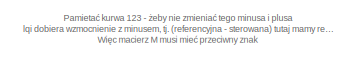
[diagram: root canvas - part 1/4, top left region]
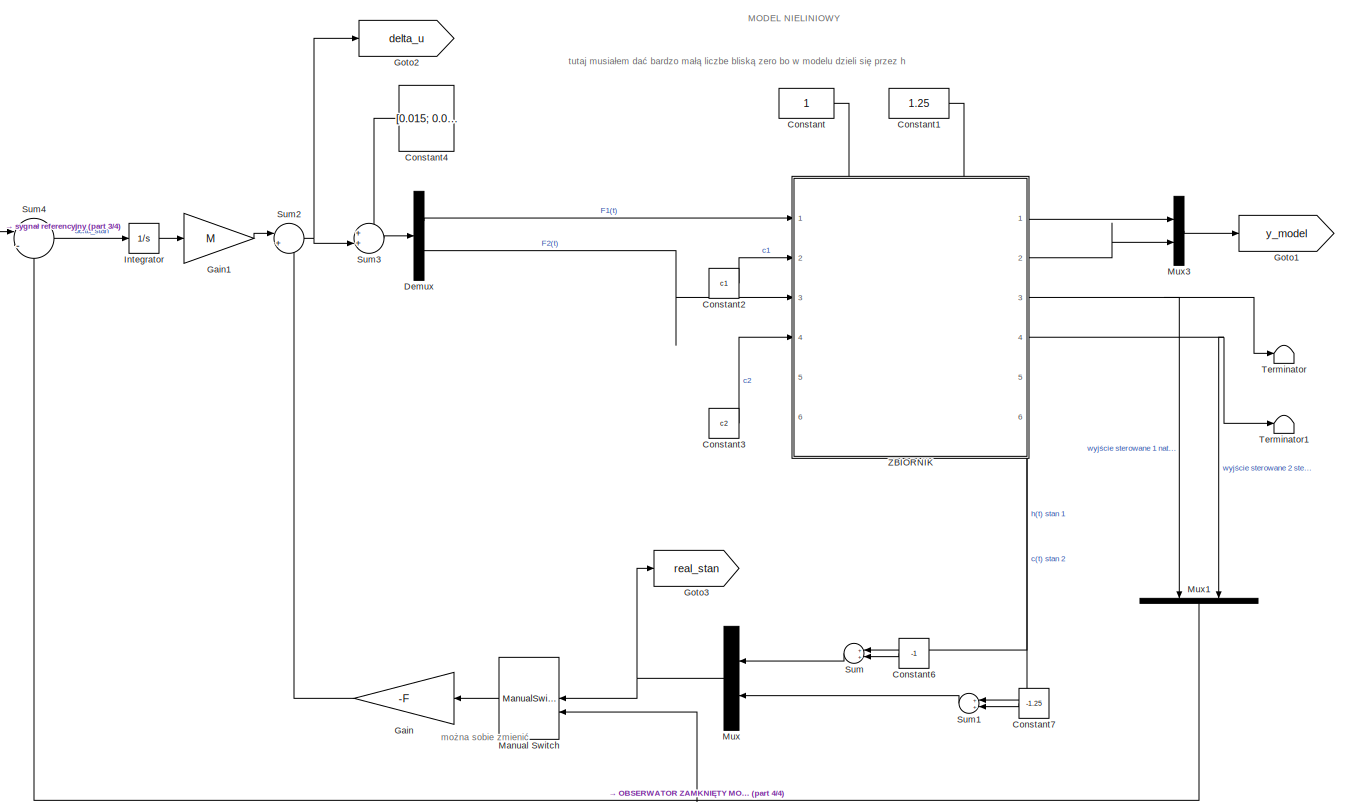
[diagram: root canvas - part 2/4, central region]
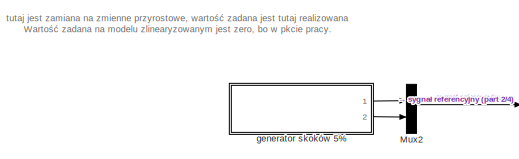
[diagram: root canvas - part 3/4, top left region]
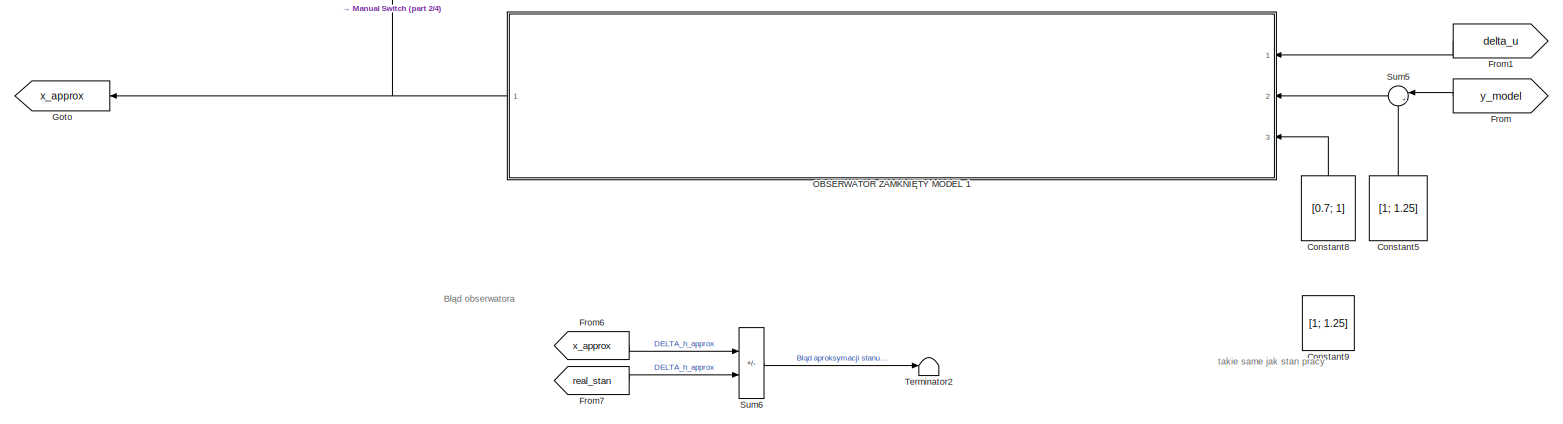
[diagram: root canvas - part 4/4, bottom right region]
MODEL slx_ad8a8d4b6759
KIND model
CONFIG AbsTol = auto
CONFIG EnableMultiTasking = off
CONFIG FixedStep = auto
CONFIG MaxStep = auto
CONFIG MinStep = auto
CONFIG RelTol = 1e-3
CONFIG SampleTimeConstraint = Unconstrained
CONFIG SolverName = VariableStepAuto
CONFIG StartTime = 0.0
CONFIG StopTime = 210
BLOCK [Constant] Constant
BLOCK [Constant] Constant1
  Value = 1.25
BLOCK [Constant] Constant2
  Value = c1
BLOCK [Constant] Constant3
  Value = c2
BLOCK [Constant] Constant4
  NameLocation = top
  Value = [0.015; 0.005]
  VectorParams1D = off
BLOCK [Constant] Constant5
  NameLocation = right
  Value = [1; 1.25]
  VectorParams1D = off
BLOCK [Constant] Constant6
  NameLocation = top
  Value = -1
BLOCK [Constant] Constant7
  NameLocation = top
  Value = -1.25
BLOCK [Constant] Constant8
  NameLocation = right
  Value = [0.7; 1]
  VectorParams1D = off
BLOCK [Constant] Constant9
  Commented = on
  NameLocation = right
  Value = [1; 1.25]
  VectorParams1D = off
BLOCK [Demux] Demux
  Outputs = 2
  Ports = [1, 2]
BLOCK [From] From
  GotoTag = y_model
  NameLocation = top
BLOCK [From] From1
  GotoTag = delta_u
  NameLocation = top
BLOCK [From] From6
  GotoTag = x_approx
BLOCK [From] From7
  GotoTag = real_stan
BLOCK [Gain] Gain
  Gain = -F
  Multiplication = Matrix(K*u) (u vector)
  NameLocation = top
BLOCK [Gain] Gain1
  Gain = M
  Multiplication = Matrix(K*u) (u vector)
BLOCK [Goto] Goto
  GotoTag = x_approx
  NameLocation = top
BLOCK [Goto] Goto1
  GotoTag = y_model
BLOCK [Goto] Goto2
  GotoTag = delta_u
BLOCK [Goto] Goto3
  GotoTag = real_stan
BLOCK [Integrator] Integrator
  Ports = [1, 1]
BLOCK [ManualSwitch] Manual Switch
  CurrentSetting = 0
  NameLocation = top
BLOCK [Mux] Mux
  DisplayOption = bar
  Inputs = 2
  NameLocation = top
  Ports = [2, 1]
BLOCK [Mux] Mux1
  DisplayOption = bar
  Inputs = 2
  NameLocation = left
  Ports = [2, 1]
BLOCK [Mux] Mux2
  DisplayOption = bar
  Inputs = 2
  Ports = [2, 1]
BLOCK [Mux] Mux3
  DisplayOption = bar
  Inputs = 2
  Ports = [2, 1]
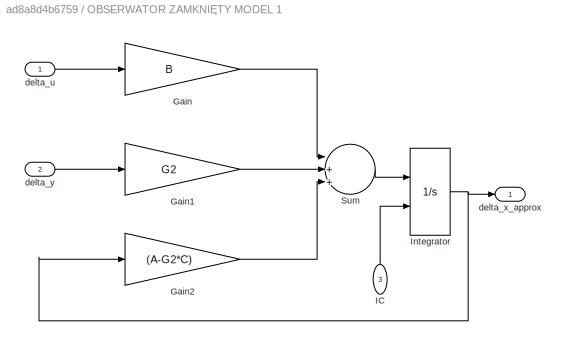
BLOCK [SubSystem] OBSERWATOR ZAMKNIĘTY MODEL 1
  Ports = [3, 1]
  RequestExecContextInheritance = off
BLOCK [Gain] OBSERWATOR ZAMKNIĘTY MODEL 1/Gain
  Gain = B
  Multiplication = Matrix(K*u) (u vector)
BLOCK [Gain] OBSERWATOR ZAMKNIĘTY MODEL 1/Gain1
  Gain = G2
  Multiplication = Matrix(K*u) (u vector)
BLOCK [Gain] OBSERWATOR ZAMKNIĘTY MODEL 1/Gain2
  Gain = (A-G2*C)
  Multiplication = Matrix(K*u) (u vector)
BLOCK [Inport] OBSERWATOR ZAMKNIĘTY MODEL 1/IC
  NameLocation = right
  Port = 3
BLOCK [Integrator] OBSERWATOR ZAMKNIĘTY MODEL 1/Integrator
  InitialConditionSource = external
  Ports = [2, 1]
BLOCK [Sum] OBSERWATOR ZAMKNIĘTY MODEL 1/Sum
  Inputs = |+++|
  Ports = [3, 1]
BLOCK [Inport] OBSERWATOR ZAMKNIĘTY MODEL 1/delta_u
BLOCK [Outport] OBSERWATOR ZAMKNIĘTY MODEL 1/delta_x_approx
BLOCK [Inport] OBSERWATOR ZAMKNIĘTY MODEL 1/delta_y
  Port = 2
BLOCK [Sum] Sum
  Inputs = ++|
  NameLocation = top
  Ports = [2, 1]
BLOCK [Sum] Sum1
  Inputs = ++|
  NameLocation = top
  Ports = [2, 1]
BLOCK [Sum] Sum2
  Inputs = |++
  Ports = [2, 1]
BLOCK [Sum] Sum3
  Inputs = ++|
  Ports = [2, 1]
BLOCK [Sum] Sum4
  Inputs = |-+
  Ports = [2, 1]
BLOCK [Sum] Sum5
  Inputs = |+-
  NameLocation = top
  Ports = [2, 1]
BLOCK [Sum] Sum6
  IconShape = rectangular
  Inputs = +-
  Ports = [2, 1]
BLOCK [Terminator] Terminator
BLOCK [Terminator] Terminator1
BLOCK [Terminator] Terminator2
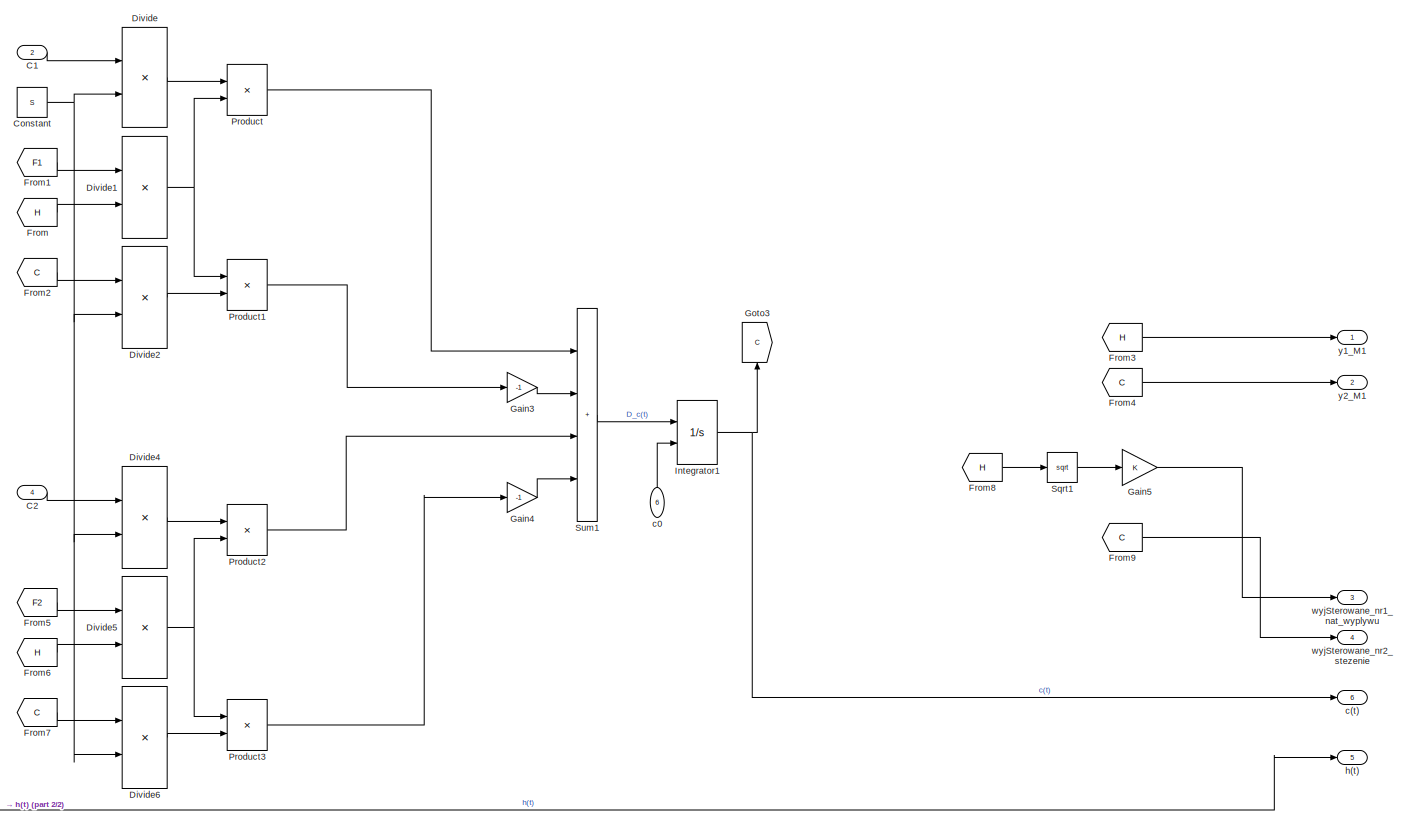
[diagram: ZBIORNIK - part 1/2, center side, full height]
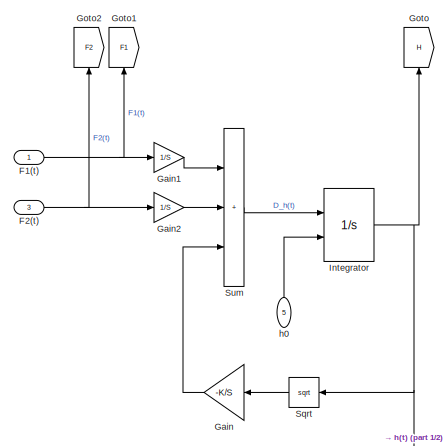
[diagram: ZBIORNIK - part 2/2, middle left region]
BLOCK [SubSystem] ZBIORNIK
  PortSchema = {"entries":[{"content":{"sides":[{"content":{"connectorIds":["In1","In2","In3","In4"]},"type":"ConnectorPlacement.EquallySpacedRectSide","uuid":"d7534cdc-3a83-4663-9669-478cefb7ba54"},{"content":{"connectorIds":["Out1","Out2","Out3","Out4"],"side":"RIGHT"},"type":"ConnectorPlacement.EquallySpacedRectSide","uuid":"43aa4112-be2a-4a64-a360-86159253405e"},{"content":{"connectorIds":["In5","In6"],"side...<+591ch>
  Ports = [6, 6]
  RequestExecContextInheritance = off
BLOCK [Inport] ZBIORNIK/C1
  Port = 2
BLOCK [Inport] ZBIORNIK/C2
  Port = 4
BLOCK [Constant] ZBIORNIK/Constant
  Value = S
BLOCK [Product] ZBIORNIK/Divide
  Inputs = */
  Ports = [2, 1]
BLOCK [Product] ZBIORNIK/Divide1
  Inputs = */
  Ports = [2, 1]
BLOCK [Product] ZBIORNIK/Divide2
  Inputs = */
  Ports = [2, 1]
BLOCK [Product] ZBIORNIK/Divide4
  Inputs = */
  Ports = [2, 1]
BLOCK [Product] ZBIORNIK/Divide5
  Inputs = */
  Ports = [2, 1]
BLOCK [Product] ZBIORNIK/Divide6
  Inputs = */
  Ports = [2, 1]
BLOCK [Inport] ZBIORNIK/F1(t)
BLOCK [Inport] ZBIORNIK/F2(t)
  Port = 3
BLOCK [From] ZBIORNIK/From
  GotoTag = H
BLOCK [From] ZBIORNIK/From1
  GotoTag = F1
BLOCK [From] ZBIORNIK/From2
  GotoTag = C
BLOCK [From] ZBIORNIK/From3
  GotoTag = H
BLOCK [From] ZBIORNIK/From4
  GotoTag = C
BLOCK [From] ZBIORNIK/From5
  GotoTag = F2
BLOCK [From] ZBIORNIK/From6
  GotoTag = H
BLOCK [From] ZBIORNIK/From7
  GotoTag = C
BLOCK [From] ZBIORNIK/From8
  GotoTag = H
BLOCK [From] ZBIORNIK/From9
  GotoTag = C
BLOCK [Gain] ZBIORNIK/Gain
  Gain = -K/S
  NameLocation = top
BLOCK [Gain] ZBIORNIK/Gain1
  Gain = 1/S
BLOCK [Gain] ZBIORNIK/Gain2
  Gain = 1/S
BLOCK [Gain] ZBIORNIK/Gain3
  Gain = -1
BLOCK [Gain] ZBIORNIK/Gain4
  Gain = -1
BLOCK [Gain] ZBIORNIK/Gain5
  Gain = K
BLOCK [Goto] ZBIORNIK/Goto
  GotoTag = H
  NameLocation = right
BLOCK [Goto] ZBIORNIK/Goto1
  GotoTag = F1
  NameLocation = right
BLOCK [Goto] ZBIORNIK/Goto2
  GotoTag = F2
  NameLocation = right
BLOCK [Goto] ZBIORNIK/Goto3
  GotoTag = C
  NameLocation = right
BLOCK [Integrator] ZBIORNIK/Integrator
  InitialConditionSource = external
  Ports = [2, 1]
BLOCK [Integrator] ZBIORNIK/Integrator1
  InitialConditionSource = external
  Ports = [2, 1]
BLOCK [Product] ZBIORNIK/Product
  Ports = [2, 1]
BLOCK [Product] ZBIORNIK/Product1
  Ports = [2, 1]
BLOCK [Product] ZBIORNIK/Product2
  Ports = [2, 1]
BLOCK [Product] ZBIORNIK/Product3
  Ports = [2, 1]
BLOCK [Sqrt] ZBIORNIK/Sqrt
  NameLocation = top
  OutputSignalType = real
BLOCK [Sqrt] ZBIORNIK/Sqrt1
BLOCK [Sum] ZBIORNIK/Sum
  IconShape = rectangular
  Inputs = +++
  Ports = [3, 1]
BLOCK [Sum] ZBIORNIK/Sum1
  IconShape = rectangular
  Inputs = ++++
  Ports = [4, 1]
BLOCK [Outport] ZBIORNIK/c(t)
  Port = 6
BLOCK [Inport] ZBIORNIK/c0
  NameLocation = right
  Port = 6
BLOCK [Outport] ZBIORNIK/h(t)
  Port = 5
BLOCK [Inport] ZBIORNIK/h0
  NameLocation = right
  Port = 5
BLOCK [Outport] ZBIORNIK/wyjSterowane_nr1_nat_wyplywu
  Port = 3
BLOCK [Outport] ZBIORNIK/wyjSterowane_nr2_stezenie
  Port = 4
BLOCK [Outport] ZBIORNIK/y1_M1
BLOCK [Outport] ZBIORNIK/y2_M1
  Port = 2
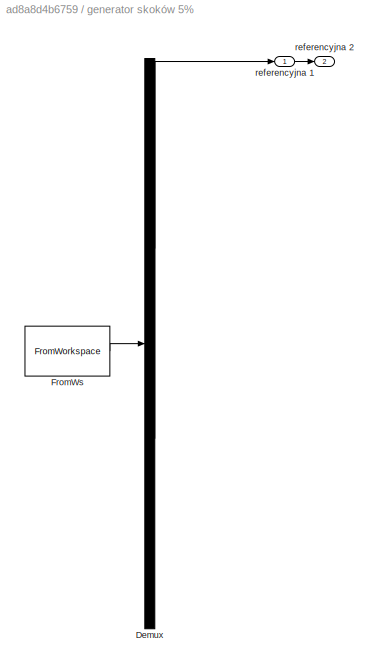
BLOCK [SubSystem] generator skoków 5%
  ClipboardFcn = sigbuilder_block('clipboard');
  CloseFcn = sigbuilder_block('close');
  ContinueFcn = sigbuilder_block('continue');
  CopyFcn = sigbuilder_block('copy');
  DeleteFcn = sigbuilder_block('delete');
  LoadFcn = sigbuilder_block('load');
  MaskHideContents = on
  ModelCloseFcn = sigbuilder_block('modelClose');
  NameChangeFcn = sigbuilder_block('namechange');
  NameLocation = top
  OpenFcn = sigbuilder_block('open',[409.8 142.2 550.8 400.2 ]);
  PauseFcn = sigbuilder_block('pause');
  Ports = [0, 2]
  PreSaveFcn = sigbuilder_block('preSave');
  RequestExecContextInheritance = off
  StartFcn = sigbuilder_block('start');
  StopFcn = sigbuilder_block('stop');
  Tag = STV Subsys
BLOCK [Demux] generator skoków 5%/Demux
  DisplayOption = none
  Outputs = 2
  Ports = [1, 2]
  Tag = STV Demux
BLOCK [FromWorkspace] generator skoków 5%/FromWs
  Tag = STV FromWs
  VariableName = tuvar
BLOCK [Outport] generator skoków 5%/referencyjna 1
  Tag = STV Outport
BLOCK [Outport] generator skoków 5%/referencyjna 2
  Port = 2
  Tag = STV Outport
ANNOTATION (root): Pamietać kurwa 123 - żeby nie zmieniać tego minusa i plusa lqi dobiera wzmocnienie z minusem, tj. (referencyjna - sterowana) tutaj mamy referencyjną wartość jako zamiane na zmienne przyrostowe więc musi być znak taki jaki jest. Więc macierz M musi mieć przeciwny znak
ANNOTATION (root): można sobie zmienić
ANNOTATION (root): MODEL NIELINIOWY
ANNOTATION (root): Błąd obserwatora
ANNOTATION (root): takie same jak stan pracy
ANNOTATION (root): tutaj jest zamiana na zmienne przyrostowe, wartość zadana jest tutaj realizowana Wartość zadana na modelu zlinearyzowanym jest zero, bo w pkcie pracy.
ANNOTATION (root): tutaj musiałem dać bardzo małą liczbe bliską zero bo w modelu dzieli się przez h
LINE Constant1:1 -> ZBIORNIK:6
LINE Constant2:1 -> ZBIORNIK:2
LINE Constant3:1 -> ZBIORNIK:4
LINE Constant4:1 -> Sum3:1
LINE Constant5:1 -> Sum5:2
LINE Constant6:1 -> Sum:2
LINE Constant7:1 -> Sum1:2
LINE Constant8:1 -> OBSERWATOR ZAMKNIĘTY MODEL 1:3
LINE Constant:1 -> ZBIORNIK:5
LINE Demux:1 -> ZBIORNIK:1
LINE Demux:2 -> ZBIORNIK:3
LINE From1:1 -> OBSERWATOR ZAMKNIĘTY MODEL 1:1
LINE From6:1 -> Sum6:1
LINE From7:1 -> Sum6:2
LINE From:1 -> Sum5:1
LINE Gain1:1 -> Sum2:1
LINE Gain:1 -> Sum2:2
LINE Integrator:1 -> Gain1:1
LINE Manual Switch:1 -> Gain:1
LINE Mux1:1 -> Sum4:2
LINE Mux2:1 -> Sum4:1
LINE Mux3:1 -> Goto1:1
NET Mux:1 -> Goto3:1, Manual Switch:1
LINE OBSERWATOR ZAMKNIĘTY MODEL 1/Gain1:1 -> OBSERWATOR ZAMKNIĘTY MODEL 1/Sum:2
LINE OBSERWATOR ZAMKNIĘTY MODEL 1/Gain2:1 -> OBSERWATOR ZAMKNIĘTY MODEL 1/Sum:3
LINE OBSERWATOR ZAMKNIĘTY MODEL 1/Gain:1 -> OBSERWATOR ZAMKNIĘTY MODEL 1/Sum:1
LINE OBSERWATOR ZAMKNIĘTY MODEL 1/IC:1 -> OBSERWATOR ZAMKNIĘTY MODEL 1/Integrator:2
NET OBSERWATOR ZAMKNIĘTY MODEL 1/Integrator:1 -> OBSERWATOR ZAMKNIĘTY MODEL 1/Gain2:1, OBSERWATOR ZAMKNIĘTY MODEL 1/delta_x_approx:1
LINE OBSERWATOR ZAMKNIĘTY MODEL 1/Sum:1 -> OBSERWATOR ZAMKNIĘTY MODEL 1/Integrator:1
LINE OBSERWATOR ZAMKNIĘTY MODEL 1/delta_u:1 -> OBSERWATOR ZAMKNIĘTY MODEL 1/Gain:1
LINE OBSERWATOR ZAMKNIĘTY MODEL 1/delta_y:1 -> OBSERWATOR ZAMKNIĘTY MODEL 1/Gain1:1
NET OBSERWATOR ZAMKNIĘTY MODEL 1:1 -> Goto:1, Manual Switch:2
LINE Sum1:1 -> Mux:2
NET Sum2:1 -> Goto2:1, Sum3:2
LINE Sum3:1 -> Demux:1
LINE Sum4:1 -> Integrator:1
LINE Sum5:1 -> OBSERWATOR ZAMKNIĘTY MODEL 1:2
LINE Sum6:1 -> Terminator2:1
LINE Sum:1 -> Mux:1
LINE ZBIORNIK/C1:1 -> ZBIORNIK/Divide:1
LINE ZBIORNIK/C2:1 -> ZBIORNIK/Divide4:1
NET ZBIORNIK/Constant:1 -> ZBIORNIK/Divide2:2, ZBIORNIK/Divide4:2, ZBIORNIK/Divide6:2, ZBIORNIK/Divide:2
NET ZBIORNIK/Divide1:1 -> ZBIORNIK/Product1:1, ZBIORNIK/Product:2
LINE ZBIORNIK/Divide2:1 -> ZBIORNIK/Product1:2
LINE ZBIORNIK/Divide4:1 -> ZBIORNIK/Product2:1
NET ZBIORNIK/Divide5:1 -> ZBIORNIK/Product2:2, ZBIORNIK/Product3:1
LINE ZBIORNIK/Divide6:1 -> ZBIORNIK/Product3:2
LINE ZBIORNIK/Divide:1 -> ZBIORNIK/Product:1
NET ZBIORNIK/F1(t):1 -> ZBIORNIK/Gain1:1, ZBIORNIK/Goto1:1
NET ZBIORNIK/F2(t):1 -> ZBIORNIK/Gain2:1, ZBIORNIK/Goto2:1
LINE ZBIORNIK/From1:1 -> ZBIORNIK/Divide1:1
LINE ZBIORNIK/From2:1 -> ZBIORNIK/Divide2:1
LINE ZBIORNIK/From3:1 -> ZBIORNIK/y1_M1:1
LINE ZBIORNIK/From4:1 -> ZBIORNIK/y2_M1:1
LINE ZBIORNIK/From5:1 -> ZBIORNIK/Divide5:1
LINE ZBIORNIK/From6:1 -> ZBIORNIK/Divide5:2
LINE ZBIORNIK/From7:1 -> ZBIORNIK/Divide6:1
LINE ZBIORNIK/From8:1 -> ZBIORNIK/Sqrt1:1
LINE ZBIORNIK/From9:1 -> ZBIORNIK/wyjSterowane_nr2_stezenie:1
LINE ZBIORNIK/From:1 -> ZBIORNIK/Divide1:2
LINE ZBIORNIK/Gain1:1 -> ZBIORNIK/Sum:1
LINE ZBIORNIK/Gain2:1 -> ZBIORNIK/Sum:2
LINE ZBIORNIK/Gain3:1 -> ZBIORNIK/Sum1:2
LINE ZBIORNIK/Gain4:1 -> ZBIORNIK/Sum1:4
LINE ZBIORNIK/Gain5:1 -> ZBIORNIK/wyjSterowane_nr1_nat_wyplywu:1
LINE ZBIORNIK/Gain:1 -> ZBIORNIK/Sum:3
NET ZBIORNIK/Integrator1:1 -> ZBIORNIK/Goto3:1, ZBIORNIK/c(t):1
NET ZBIORNIK/Integrator:1 -> ZBIORNIK/Goto:1, ZBIORNIK/Sqrt:1, ZBIORNIK/h(t):1
LINE ZBIORNIK/Product1:1 -> ZBIORNIK/Gain3:1
LINE ZBIORNIK/Product2:1 -> ZBIORNIK/Sum1:3
LINE ZBIORNIK/Product3:1 -> ZBIORNIK/Gain4:1
LINE ZBIORNIK/Product:1 -> ZBIORNIK/Sum1:1
LINE ZBIORNIK/Sqrt1:1 -> ZBIORNIK/Gain5:1
LINE ZBIORNIK/Sqrt:1 -> ZBIORNIK/Gain:1
LINE ZBIORNIK/Sum1:1 -> ZBIORNIK/Integrator1:1
LINE ZBIORNIK/Sum:1 -> ZBIORNIK/Integrator:1
LINE ZBIORNIK/c0:1 -> ZBIORNIK/Integrator1:2
LINE ZBIORNIK/h0:1 -> ZBIORNIK/Integrator:2
LINE ZBIORNIK:1 -> Mux3:1
LINE ZBIORNIK:2 -> Mux3:2
NET ZBIORNIK:3 -> Mux1:1, Terminator:1
NET ZBIORNIK:4 -> Mux1:2, Terminator1:1
LINE ZBIORNIK:5 -> Sum:1
LINE ZBIORNIK:6 -> Sum1:1
LINE generator skoków 5%:1 -> Mux2:1
LINE generator skoków 5%:2 -> Mux2:2
note: NET lines group one-source signal fan-out (src -> all destinations, sorted); 1:1 wires keep LINE
